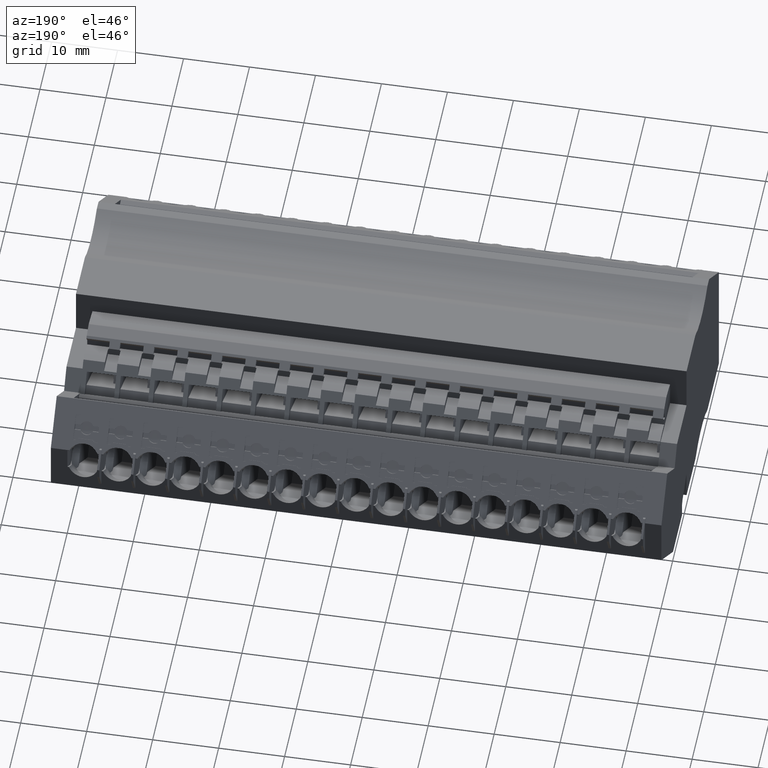
[diagram: clean part render]
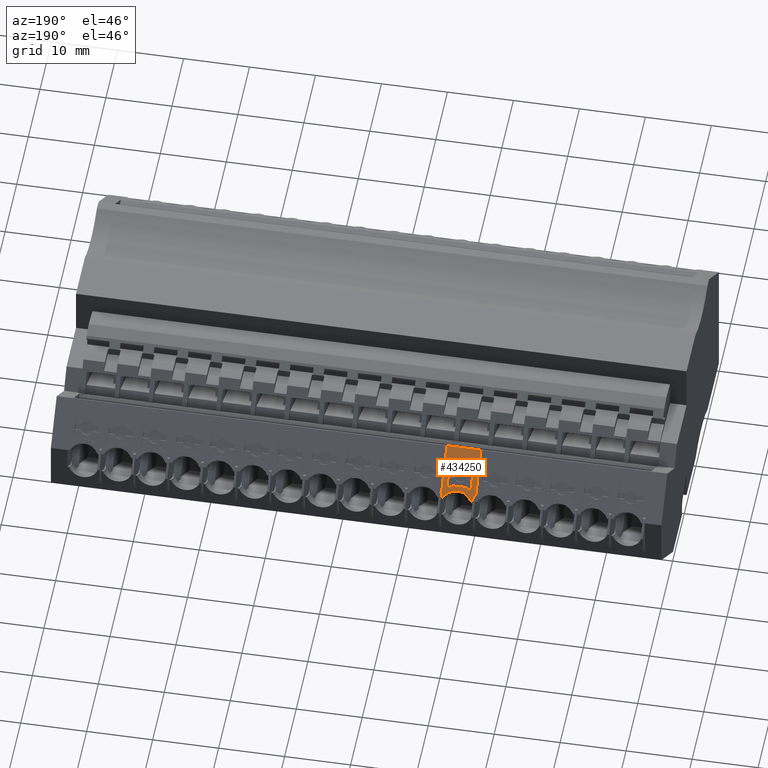
[diagram: same view with one face highlighted and labeled with its STEP entity id]
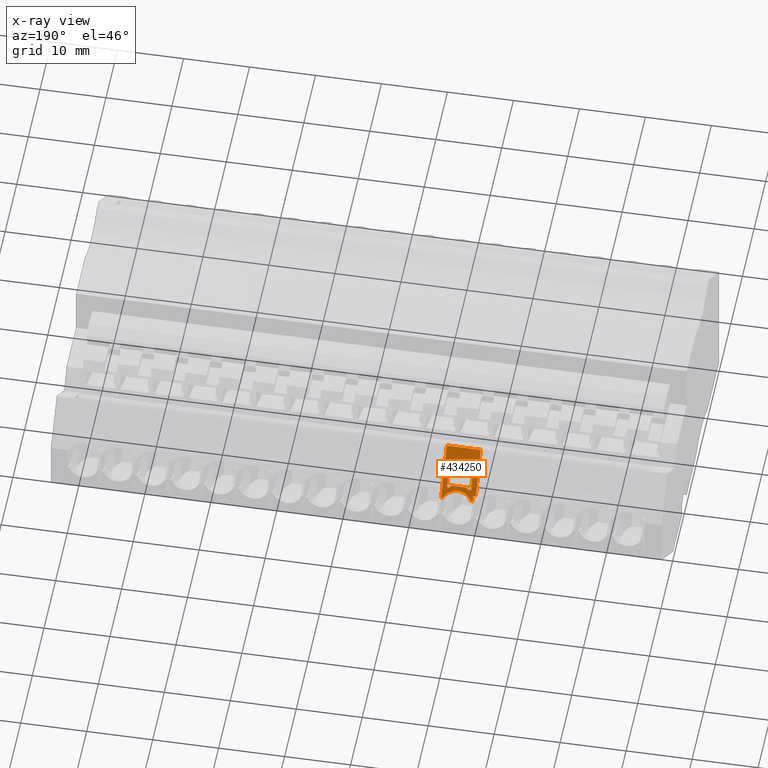
[diagram: x-ray of the same camera — body ghosted, the highlighted face saturated]
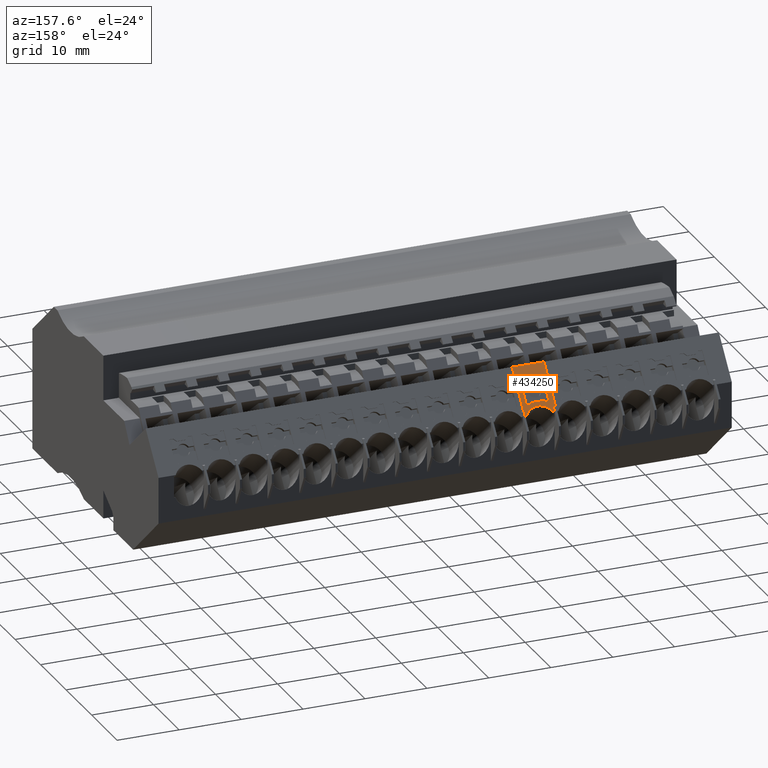
[diagram: same view with one face highlighted and labeled with its STEP entity id]
A machine part, auxiliary view. The second image highlights one B-rep face of the part: STEP entity #434250.
The next image is the same camera in x-ray: the body ghosted, the highlighted face saturated — about 0% of this face is hidden behind the body in this view.
A second angle (auxiliary view) of the same face is appended — the face is thin or edge-on in the first view.
In plain terms, the highlighted planar face has unit normal (-0, 0.766, 0.6428).
Its self-contained STEP definition (entity closure, byte-faithful):
#107880=CARTESIAN_POINT('',(468.789220509923,687.715991452529,
95.0860985057279));
#107890=VERTEX_POINT('',#107880);
#108040=CARTESIAN_POINT('',(468.789220509962,687.71599145232,
94.6699999519683));
#108050=VERTEX_POINT('',#108040);
#108080=CARTESIAN_POINT('',(468.789220510036,687.715991451918,
93.8699999920785));
#108090=DIRECTION('',(-9.36638245300198E-11,5.02166847890709E-10,1.));
#108100=VECTOR('',#108090,1.);
#108110=LINE('',#108080,#108100);
#108120=EDGE_CURVE('',#108050,#107890,#108110,.T.);
#122910=CARTESIAN_POINT('',(468.596384247588,687.945804762256,
97.5463749576867));
#122920=VERTEX_POINT('',#122910);
#123070=CARTESIAN_POINT('',(468.596384247789,687.945804761196,
95.4436245450798));
#123080=VERTEX_POINT('',#123070);
#123110=CARTESIAN_POINT('',(468.596384247939,687.945804760402,
93.8699999919073));
#123120=DIRECTION('',(-9.53799141692885E-11,5.04212003886608E-10,1.));
#123130=VECTOR('',#123120,1.);
#123140=LINE('',#123110,#123130);
#123150=EDGE_CURVE('',#123080,#122920,#123140,.T.);
#134190=CARTESIAN_POINT('',(464.820007045212,692.446315863434,
88.719999988555));
#134200=DIRECTION('',(-1.6947493584462E-11,4.10739884737656E-10,1.));
#134210=VECTOR('',#134200,1.);
#134220=LINE('',#134190,#134210);
#163920=CARTESIAN_POINT('',(469.853158774432,686.448039201824,
94.2199999795913));
#163930=VERTEX_POINT('',#163920);
#163960=CARTESIAN_POINT('',(460.057092094666,698.122536877778,
94.2199999747127));
#163970=DIRECTION('',(0.642787609117033,-0.766044443596851,
3.2011394940328E-10));
#163980=VECTOR('',#163970,1.);
#163990=LINE('',#163960,#163980);
#164000=CARTESIAN_POINT('',(469.319520307557,687.084004762254,
94.2199999793256));
#164010=VERTEX_POINT('',#164000);
#164020=EDGE_CURVE('',#164010,#163930,#163990,.T.);
#186160=CARTESIAN_POINT('',(466.282348835064,690.703564782988,
98.3200004218293));
#186170=VERTEX_POINT('',#186160);
#186600=CARTESIAN_POINT('',(468.789220509592,687.715991454186,
98.3200004236119));
#186610=VERTEX_POINT('',#186600);
#186640=CARTESIAN_POINT('',(460.057092093954,698.122536880229,
98.3200004174029));
#186650=DIRECTION('',(-0.642787609117033,0.766044443596851,
-4.570555116598E-10));
#186660=VECTOR('',#186650,1.);
#186670=LINE('',#186640,#186660);
#186680=EDGE_CURVE('',#186610,#186170,#186670,.T.);
#226660=CARTESIAN_POINT('',(480.967221274263,673.202815271583,
73.2699999869654));
#226670=DIRECTION('',(0.766044443506127,0.642787609225153,
-6.26829308777775E-10));
#226680=DIRECTION('',(0.642787609225154,-0.766044443506128,
3.53694291000708E-10));
#226690=AXIS2_PLACEMENT_3D('',#226660,#226670,#226680);
#226700=PLANE('',#226690);
#242370=CARTESIAN_POINT('',(469.85315877438,686.448039203077,
98.7427422382976));
#242380=VERTEX_POINT('',#242370);
#242410=CARTESIAN_POINT('',(470.572956145731,685.590218097706,
96.6199999799435));
#242420=DIRECTION('',(-0.766044443609541,-0.642787609101909,
4.36973645764363E-10));
#242430=DIRECTION('',(-0.642787609101909,0.766044443609542,
-3.23562025759873E-10));
#242440=AXIS2_PLACEMENT_3D('',#242410,#242420,#242430);
#242450=CIRCLE('',#242440,2.40000000000534);
#242460=CARTESIAN_POINT('',(469.853158774479,686.448039201302,
94.4972577208388));
#242470=VERTEX_POINT('',#242460);
#242480=EDGE_CURVE('',#242380,#242470,#242450,.T.);
#243540=CARTESIAN_POINT('',(466.282348835397,690.703564781418,
95.3159762529185));
#243550=VERTEX_POINT('',#243540);
#243700=CARTESIAN_POINT('',(466.571603108834,690.358844961532,
95.7659760188226));
#243710=VERTEX_POINT('',#243700);
#243740=CARTESIAN_POINT('',(465.352893210502,691.811246862651,
93.8699999890281));
#243750=DIRECTION('',(-0.454519477187463,0.541675220383874,
-0.707106781525476));
#243760=VECTOR('',#243750,1.);
#243770=LINE('',#243740,#243760);
#243780=EDGE_CURVE('',#243710,#243550,#243770,.T.);
#257390=CARTESIAN_POINT('',(469.319520317513,687.084004774343,
99.019999987063));
#257400=VERTEX_POINT('',#257390);
#257900=CARTESIAN_POINT('',(464.820007055198,692.446315876191,
99.0199999842805));
#257910=VERTEX_POINT('',#257900);
#257940=CARTESIAN_POINT('',(460.057092102463,698.122536889278,
99.0199999813353));
#257950=DIRECTION('',(0.642787609225153,-0.766044443506128,
3.97483338039747E-10));
#257960=VECTOR('',#257950,1.);
#257970=LINE('',#257940,#257960);
#257980=EDGE_CURVE('',#257910,#257400,#257970,.T.);
#307210=CARTESIAN_POINT('',(466.571603108649,690.358844962322,
97.2240249382124));
#307220=VERTEX_POINT('',#307210);
#307250=CARTESIAN_POINT('',(466.571603109074,690.358844960505,
93.8699999901099));
#307260=DIRECTION('',(1.26972147129217E-10,-5.41862161071521E-10,-1.));
#307270=VECTOR('',#307260,1.);
#307280=LINE('',#307250,#307270);
#307290=EDGE_CURVE('',#307220,#243710,#307280,.T.);
#362920=CARTESIAN_POINT('',(466.282348835135,690.703564782651,
97.6740247036442));
#362930=VERTEX_POINT('',#362920);
#363030=CARTESIAN_POINT('',(466.282348835555,690.703564780665,
93.8699999898532));
#363040=DIRECTION('',(1.10339279182462E-10,-5.22039880910903E-10,-1.));
#363050=VECTOR('',#363040,1.);
#363060=LINE('',#363030,#363050);
#363070=EDGE_CURVE('',#186170,#362930,#363060,.T.);
#381730=CARTESIAN_POINT('',(468.727528786129,687.789512785629,
93.8699999920237));
#381740=DIRECTION('',(0.454519477349067,-0.541675221128777,
-0.70710678085097));
#381750=VECTOR('',#381740,1.);
#381760=LINE('',#381730,#381750);
#381770=EDGE_CURVE('',#362930,#307220,#381760,.T.);
#392130=CARTESIAN_POINT('',(468.789220509702,687.715991453893,
97.9039009974616));
#392140=VERTEX_POINT('',#392130);
#392240=CARTESIAN_POINT('',(466.613484184383,690.308933038469,
93.8699999901471));
#392250=DIRECTION('',(0.413175910705188,-0.492403876400557,
0.766044443435656));
#392260=VECTOR('',#392250,1.);
#392270=LINE('',#392240,#392260);
#392280=EDGE_CURVE('',#122920,#392140,#392270,.T.);
#433500=CARTESIAN_POINT('',(469.319520307578,687.084004762093,
93.8699999925494));
#433510=DIRECTION('',(-5.86570307982182E-11,4.60447375632641E-10,1.));
#433520=VECTOR('',#433510,1.);
#433530=LINE('',#433500,#433520);
#433540=CARTESIAN_POINT('',(469.319520316948,687.084004769994,
93.8699999869458));
#433550=VERTEX_POINT('',#433540);
#433560=EDGE_CURVE('',#433550,#164010,#433530,.T.);
#433570=ORIENTED_EDGE('',*,*,#433560,.F.);
#433580=ORIENTED_EDGE('',*,*,#164020,.F.);
#433590=CARTESIAN_POINT('',(469.853158774374,686.448039201181,
93.869999993023));
#433600=DIRECTION('',(1.66699254649708E-10,1.918782124309E-10,1.));
#433610=VECTOR('',#433600,1.);
#433620=LINE('',#433590,#433610);
#433630=EDGE_CURVE('',#163930,#242470,#433620,.T.);
#433640=ORIENTED_EDGE('',*,*,#433630,.F.);
#433650=ORIENTED_EDGE('',*,*,#242480,.T.);
#433660=CARTESIAN_POINT('',(469.853158773916,686.448039201728,
93.869999993023));
#433670=DIRECTION('',(9.53019264641259E-11,2.76966234926162E-10,1.));
#433680=VECTOR('',#433670,1.);
#433690=LINE('',#433660,#433680);
#433700=CARTESIAN_POINT('',(469.853158774407,686.448039212352,
99.019999987393));
#433710=VERTEX_POINT('',#433700);
#433720=EDGE_CURVE('',#242380,#433710,#433690,.T.);
#433730=ORIENTED_EDGE('',*,*,#433720,.F.);
#433740=EDGE_CURVE('',#257400,#433710,#257970,.T.);
#433750=ORIENTED_EDGE('',*,*,#433740,.T.);
#433760=ORIENTED_EDGE('',*,*,#257980,.T.);
#433770=CARTESIAN_POINT('',(464.820007050292,692.446315877016,
93.8699999841634));
#433780=VERTEX_POINT('',#433770);
#433790=EDGE_CURVE('',#433780,#257910,#134220,.T.);
#433800=ORIENTED_EDGE('',*,*,#433790,.T.);
#433810=CARTESIAN_POINT('',(460.057092101984,698.122536884826,
93.8699999812181));
#433820=DIRECTION('',(-0.642787609225153,0.766044443506128,
-3.97483338039747E-10));
#433830=VECTOR('',#433820,1.);
#433840=LINE('',#433810,#433830);
#433850=EDGE_CURVE('',#433550,#433780,#433840,.T.);
#433860=ORIENTED_EDGE('',*,*,#433850,.T.);
#433870=EDGE_LOOP('',(#433860,#433800,#433760,#433750,#433730,#433650,
#433640,#433580,#433570));
#433880=FACE_OUTER_BOUND('',#433870,.T.);
#433890=ORIENTED_EDGE('',*,*,#363070,.T.);
#433900=ORIENTED_EDGE('',*,*,#186680,.T.);
#433910=CARTESIAN_POINT('',(468.789220510769,687.715991451045,
93.8699999920785));
#433920=DIRECTION('',(-2.64576927816554E-10,7.05853153061389E-10,1.));
#433930=VECTOR('',#433920,1.);
#433940=LINE('',#433910,#433930);
#433950=EDGE_CURVE('',#392140,#186610,#433940,.T.);
#433960=ORIENTED_EDGE('',*,*,#433950,.T.);
#433970=ORIENTED_EDGE('',*,*,#392280,.T.);
#433980=ORIENTED_EDGE('',*,*,#123150,.T.);
#433990=CARTESIAN_POINT('',(469.445138865047,686.934298394705,
93.8699999926608));
#434000=DIRECTION('',(-0.413175910895737,0.49240387722599,
0.766044442802303));
#434010=VECTOR('',#434000,1.);
#434020=LINE('',#433990,#434010);
#434030=EDGE_CURVE('',#107890,#123080,#434020,.T.);
#434040=ORIENTED_EDGE('',*,*,#434030,.T.);
#434050=ORIENTED_EDGE('',*,*,#108120,.T.);
#434060=CARTESIAN_POINT('',(460.057092094588,698.122536878047,
94.6699999459246));
#434070=DIRECTION('',(0.642787609117033,-0.766044443596851,
4.44888334671647E-10));
#434080=VECTOR('',#434070,1.);
#434090=LINE('',#434060,#434080);
#434100=CARTESIAN_POINT('',(466.282348835469,690.70356478108,
94.6699999502332));
#434110=VERTEX_POINT('',#434100);
#434120=EDGE_CURVE('',#434110,#108050,#434090,.T.);
#434130=ORIENTED_EDGE('',*,*,#434120,.T.);
#434140=CARTESIAN_POINT('',(466.282348835557,690.703564780663,
93.8699999898532));
#434150=DIRECTION('',(1.10339279182462E-10,-5.22039880910903E-10,-1.));
#434160=VECTOR('',#434150,1.);
#434170=LINE('',#434140,#434160);
#434180=EDGE_CURVE('',#243550,#434110,#434170,.T.);
#434190=ORIENTED_EDGE('',*,*,#434180,.T.);
#434200=ORIENTED_EDGE('',*,*,#243780,.T.);
#434210=ORIENTED_EDGE('',*,*,#307290,.T.);
#434220=ORIENTED_EDGE('',*,*,#381770,.T.);
#434230=EDGE_LOOP('',(#434220,#434210,#434200,#434190,#434130,#434050,
#434040,#433980,#433970,#433960,#433900,#433890));
#434240=FACE_BOUND('',#434230,.T.);
#434250=ADVANCED_FACE('',(#433880,#434240),#226700,.T.);